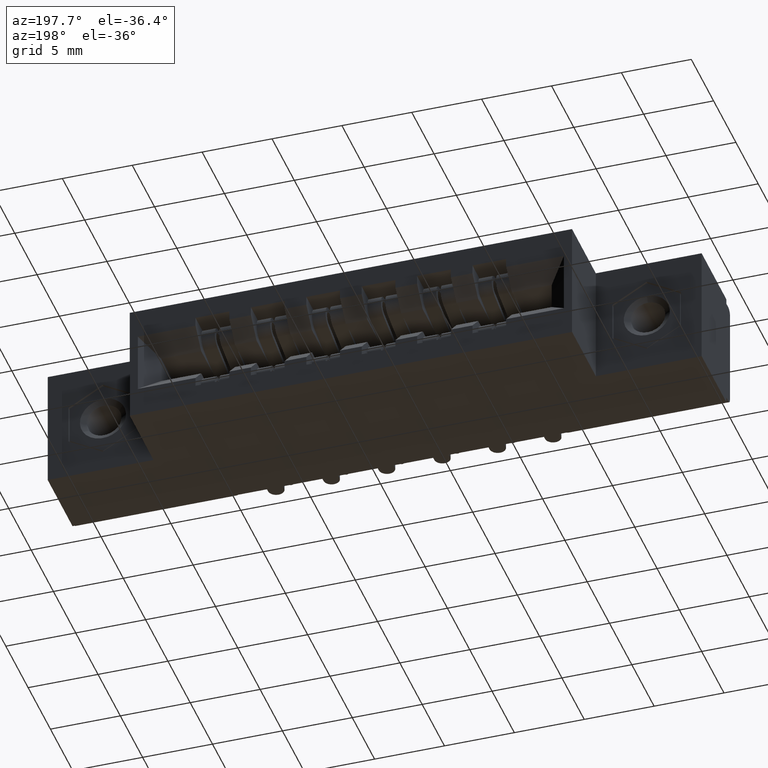
[diagram: clean part render]
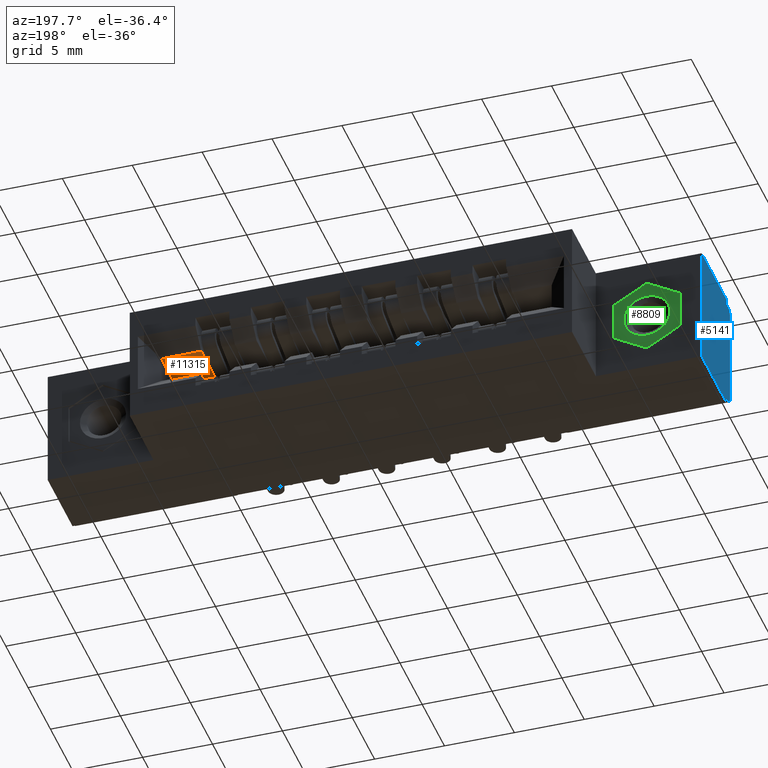
[diagram: same view with three faces highlighted in distinct colors, each labeled with its STEP entity id]
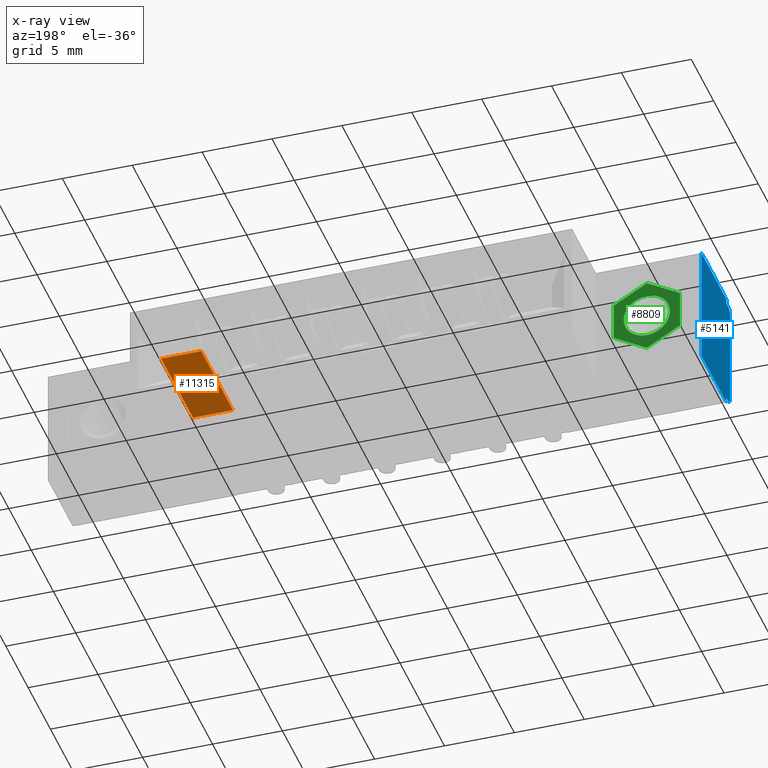
[diagram: x-ray of the same camera — body ghosted, the three highlighted faces saturated]
A machine part, auxiliary view with three faces highlighted in distinct colors.
The next image is the same camera in x-ray (body ghosted, the three faces saturated) — at least one of them is partly hidden behind the body in this view.
Their STEP definitions:

[orange] entity #11315 — the highlighted planar face has unit normal (0, 0, 1).
#245 = ORIENTED_EDGE ( 'NONE', *, *, #2216, .T. ) ;
#351 = CARTESIAN_POINT ( 'NONE',  ( 1.358499999999998700, 0.1299999999999999800, -0.1345000000000006500 ) ) ;
#494 = VERTEX_POINT ( 'NONE', #2546 ) ;
#1155 = DIRECTION ( 'NONE',  ( -0.0000000000000000000, 1.000000000000000000, -0.0000000000000000000 ) ) ;
#2012 = CARTESIAN_POINT ( 'NONE',  ( 0.3709999999999986600, 0.4100000000000002500, -0.1345000000000006500 ) ) ;
#2110 = VERTEX_POINT ( 'NONE', #5764 ) ;
#2216 = EDGE_CURVE ( 'NONE', #4290, #8502, #8655, .T. ) ;
#2251 = DIRECTION ( 'NONE',  ( 1.552186360036513300E-017, 0.0000000000000000000, 1.000000000000000000 ) ) ;
#2502 = VECTOR ( 'NONE', #8718, 39.37007874015748100 ) ;
#2546 = CARTESIAN_POINT ( 'NONE',  ( 1.470999999999999000, 0.1299999999999999800, -0.1345000000000006500 ) ) ;
#2722 = ORIENTED_EDGE ( 'NONE', *, *, #10564, .T. ) ;
#3838 = ORIENTED_EDGE ( 'NONE', *, *, #8781, .F. ) ;
#4001 = ORIENTED_EDGE ( 'NONE', *, *, #7530, .F. ) ;
#4290 = VERTEX_POINT ( 'NONE', #8709 ) ;
#4406 = LINE ( 'NONE', #6262, #6437 ) ;
#4968 = LINE ( 'NONE', #351, #2502 ) ;
#5002 = DIRECTION ( 'NONE',  ( 1.000000000000000000, 0.0000000000000000000, -1.552186360036513300E-017 ) ) ;
#5376 = DIRECTION ( 'NONE',  ( 1.000000000000000000, 0.0000000000000000000, -1.552186360036513000E-017 ) ) ;
#5701 = CARTESIAN_POINT ( 'NONE',  ( 1.470999999999999000, 0.1299999999999999800, -0.1345000000000006500 ) ) ;
#5764 = CARTESIAN_POINT ( 'NONE',  ( 1.358499999999998700, 0.1299999999999999800, -0.1345000000000006500 ) ) ;
#5957 = EDGE_LOOP ( 'NONE', ( #4001, #2722, #245, #3838 ) ) ;
#6262 = CARTESIAN_POINT ( 'NONE',  ( 0.3709999999999986600, 0.1299999999999999800, -0.1345000000000006500 ) ) ;
#6437 = VECTOR ( 'NONE', #5376, 39.37007874015748100 ) ;
#6553 = LINE ( 'NONE', #5701, #7821 ) ;
#6875 = CARTESIAN_POINT ( 'NONE',  ( 1.470999999999999000, 0.4100000000000002500, -0.1345000000000006500 ) ) ;
#7530 = EDGE_CURVE ( 'NONE', #2110, #494, #4406, .T. ) ;
#7821 = VECTOR ( 'NONE', #1155, 39.37007874015748100 ) ;
#8502 = VERTEX_POINT ( 'NONE', #6875 ) ;
#8569 = DIRECTION ( 'NONE',  ( 1.000000000000000000, 0.0000000000000000000, -1.552186360036513300E-017 ) ) ;
#8655 = LINE ( 'NONE', #2012, #9239 ) ;
#8709 = CARTESIAN_POINT ( 'NONE',  ( 1.358499999999998700, 0.4100000000000002500, -0.1345000000000006500 ) ) ;
#8718 = DIRECTION ( 'NONE',  ( -0.0000000000000000000, 1.000000000000000000, 0.0000000000000000000 ) ) ;
#8781 = EDGE_CURVE ( 'NONE', #494, #8502, #6553, .T. ) ;
#9239 = VECTOR ( 'NONE', #8569, 39.37007874015748100 ) ;
#9587 = CARTESIAN_POINT ( 'NONE',  ( 0.3709999999999986600, 0.1299999999999999800, -0.1345000000000006500 ) ) ;
#10564 = EDGE_CURVE ( 'NONE', #2110, #4290, #4968, .T. ) ;
#11156 = AXIS2_PLACEMENT_3D ( 'NONE', #9587, #2251, #5002 ) ;
#11315 = ADVANCED_FACE ( 'NONE', ( #11596 ), #11541, .F. ) ;
#11541 = PLANE ( 'NONE',  #11156 ) ;
#11596 = FACE_OUTER_BOUND ( 'NONE', #5957, .T. ) ;

[blue] entity #5141 — the highlighted planar face has unit normal (1, 0, 0).
#164 = CARTESIAN_POINT ( 'NONE',  ( 0.0000000000000000000, 0.0000000000000000000, -0.02999999999999995400 ) ) ;
#286 = EDGE_CURVE ( 'NONE', #2917, #7035, #8710, .T. ) ;
#323 = VECTOR ( 'NONE', #6793, 39.37007874015748100 ) ;
#348 = DIRECTION ( 'NONE',  ( -0.0000000000000000000, -0.0000000000000000000, 1.000000000000000000 ) ) ;
#508 = CARTESIAN_POINT ( 'NONE',  ( 0.0000000000000000000, 0.03100000000000000000, 0.0000000000000000000 ) ) ;
#575 = ORIENTED_EDGE ( 'NONE', *, *, #11843, .F. ) ;
#628 = CARTESIAN_POINT ( 'NONE',  ( 0.0000000000000000000, 0.01499999999999999900, -0.3280000000000000100 ) ) ;
#1298 = CARTESIAN_POINT ( 'NONE',  ( 0.0000000000000000000, 0.0000000000000000000, 0.0000000000000000000 ) ) ;
#1333 = PLANE ( 'NONE',  #3603 ) ;
#1447 = ORIENTED_EDGE ( 'NONE', *, *, #7355, .T. ) ;
#1562 = CARTESIAN_POINT ( 'NONE',  ( 0.0000000000000000000, 0.01499999999999999900, -0.02999999999999995400 ) ) ;
#1610 = LINE ( 'NONE', #11660, #11143 ) ;
#1811 = CARTESIAN_POINT ( 'NONE',  ( 0.0000000000000000000, 0.03100000000000000000, -0.3430000000000000300 ) ) ;
#2059 = EDGE_CURVE ( 'NONE', #9774, #7039, #3763, .T. ) ;
#2115 = CARTESIAN_POINT ( 'NONE',  ( 0.0000000000000000000, 0.03100000000000000000, 0.0000000000000000000 ) ) ;
#2211 = VECTOR ( 'NONE', #3995, 39.37007874015748100 ) ;
#2231 = LINE ( 'NONE', #5839, #9585 ) ;
#2387 = VECTOR ( 'NONE', #348, 39.37007874015748100 ) ;
#2437 = ORIENTED_EDGE ( 'NONE', *, *, #11403, .T. ) ;
#2637 = CARTESIAN_POINT ( 'NONE',  ( 0.0000000000000000000, 0.2500000000000000600, -0.3430000000000000300 ) ) ;
#2664 = EDGE_CURVE ( 'NONE', #8603, #4849, #9278, .T. ) ;
#2917 = VERTEX_POINT ( 'NONE', #8668 ) ;
#2920 = CIRCLE ( 'NONE', #11865, 0.01500000000000000300 ) ;
#2966 = EDGE_CURVE ( 'NONE', #8305, #11521, #2920, .T. ) ;
#3420 = DIRECTION ( 'NONE',  ( -0.0000000000000000000, -0.0000000000000000000, 1.000000000000000000 ) ) ;
#3603 = AXIS2_PLACEMENT_3D ( 'NONE', #4235, #10566, #8714 ) ;
#3763 = LINE ( 'NONE', #1811, #8663 ) ;
#3995 = DIRECTION ( 'NONE',  ( -0.0000000000000000000, -1.000000000000000000, -0.0000000000000000000 ) ) ;
#4070 = DIRECTION ( 'NONE',  ( 0.0000000000000000000, 1.000000000000000000, 0.0000000000000000000 ) ) ;
#4235 = CARTESIAN_POINT ( 'NONE',  ( 0.0000000000000000000, 0.4600000000000000200, 0.0000000000000000000 ) ) ;
#4272 = DIRECTION ( 'NONE',  ( -1.000000000000000000, 0.0000000000000000000, -0.0000000000000000000 ) ) ;
#4301 = CARTESIAN_POINT ( 'NONE',  ( 0.0000000000000000000, 0.01499999999999999900, -0.01499999999999997700 ) ) ;
#4647 = DIRECTION ( 'NONE',  ( -0.0000000000000000000, -0.0000000000000000000, -1.000000000000000000 ) ) ;
#4849 = VERTEX_POINT ( 'NONE', #7370 ) ;
#5044 = VERTEX_POINT ( 'NONE', #11350 ) ;
#5141 = ADVANCED_FACE ( 'NONE', ( #6765 ), #1333, .F. ) ;
#5597 = DIRECTION ( 'NONE',  ( -0.0000000000000000000, -1.000000000000000000, -0.0000000000000000000 ) ) ;
#5686 = VECTOR ( 'NONE', #5597, 39.37007874015748100 ) ;
#5736 = DIRECTION ( 'NONE',  ( -1.000000000000000000, 0.0000000000000000000, -0.0000000000000000000 ) ) ;
#5839 = CARTESIAN_POINT ( 'NONE',  ( 0.0000000000000000000, 0.0000000000000000000, -0.3280000000000000100 ) ) ;
#5921 = ORIENTED_EDGE ( 'NONE', *, *, #2664, .T. ) ;
#5946 = ORIENTED_EDGE ( 'NONE', *, *, #2966, .T. ) ;
#6173 = ORIENTED_EDGE ( 'NONE', *, *, #9815, .F. ) ;
#6765 = FACE_OUTER_BOUND ( 'NONE', #7159, .T. ) ;
#6793 = DIRECTION ( 'NONE',  ( 0.0000000000000000000, 0.0000000000000000000, -1.000000000000000000 ) ) ;
#7035 = VERTEX_POINT ( 'NONE', #508 ) ;
#7039 = VERTEX_POINT ( 'NONE', #10423 ) ;
#7143 = CARTESIAN_POINT ( 'NONE',  ( 0.0000000000000000000, 0.2500000000000000600, 0.0000000000000000000 ) ) ;
#7159 = EDGE_LOOP ( 'NONE', ( #10808, #6173, #2437, #8590, #9526, #5921, #1447, #5946, #11519, #575 ) ) ;
#7240 = LINE ( 'NONE', #2115, #323 ) ;
#7255 = LINE ( 'NONE', #9404, #2211 ) ;
#7355 = EDGE_CURVE ( 'NONE', #4849, #8305, #8299, .T. ) ;
#7370 = CARTESIAN_POINT ( 'NONE',  ( 0.0000000000000000000, 0.0000000000000000000, -0.3130000000000000600 ) ) ;
#7716 = VECTOR ( 'NONE', #3420, 39.37007874015748100 ) ;
#8299 = LINE ( 'NONE', #1298, #2387 ) ;
#8305 = VERTEX_POINT ( 'NONE', #164 ) ;
#8590 = ORIENTED_EDGE ( 'NONE', *, *, #2059, .F. ) ;
#8603 = VERTEX_POINT ( 'NONE', #628 ) ;
#8625 = DIRECTION ( 'NONE',  ( 0.0000000000000000000, 0.0000000000000000000, -1.000000000000000000 ) ) ;
#8663 = VECTOR ( 'NONE', #4647, 39.37007874015748100 ) ;
#8668 = CARTESIAN_POINT ( 'NONE',  ( 0.0000000000000000000, 0.2500000000000000600, 0.0000000000000000000 ) ) ;
#8710 = LINE ( 'NONE', #9144, #5686 ) ;
#8714 = DIRECTION ( 'NONE',  ( 0.0000000000000000000, 0.0000000000000000000, -1.000000000000000000 ) ) ;
#8861 = CARTESIAN_POINT ( 'NONE',  ( 0.0000000000000000000, 0.03100000000000000000, -0.3280000000000000100 ) ) ;
#9144 = CARTESIAN_POINT ( 'NONE',  ( 0.0000000000000000000, 0.4600000000000000200, 0.0000000000000000000 ) ) ;
#9278 = CIRCLE ( 'NONE', #9621, 0.01499999999999997700 ) ;
#9370 = VERTEX_POINT ( 'NONE', #2637 ) ;
#9404 = CARTESIAN_POINT ( 'NONE',  ( 0.0000000000000000000, 0.0000000000000000000, -0.01499999999999997700 ) ) ;
#9526 = ORIENTED_EDGE ( 'NONE', *, *, #10172, .F. ) ;
#9585 = VECTOR ( 'NONE', #4070, 39.37007874015748100 ) ;
#9621 = AXIS2_PLACEMENT_3D ( 'NONE', #10368, #5736, #8625 ) ;
#9774 = VERTEX_POINT ( 'NONE', #8861 ) ;
#9815 = EDGE_CURVE ( 'NONE', #9370, #2917, #10020, .T. ) ;
#9860 = DIRECTION ( 'NONE',  ( -0.0000000000000000000, -1.000000000000000000, -0.0000000000000000000 ) ) ;
#10020 = LINE ( 'NONE', #7143, #7716 ) ;
#10172 = EDGE_CURVE ( 'NONE', #8603, #9774, #2231, .T. ) ;
#10368 = CARTESIAN_POINT ( 'NONE',  ( 0.0000000000000000000, 0.01499999999999999900, -0.3130000000000000600 ) ) ;
#10423 = CARTESIAN_POINT ( 'NONE',  ( 0.0000000000000000000, 0.03100000000000000000, -0.3430000000000000300 ) ) ;
#10566 = DIRECTION ( 'NONE',  ( 1.000000000000000000, -0.0000000000000000000, 0.0000000000000000000 ) ) ;
#10799 = DIRECTION ( 'NONE',  ( 0.0000000000000000000, 8.537024980200820800E-016, -1.000000000000000000 ) ) ;
#10808 = ORIENTED_EDGE ( 'NONE', *, *, #286, .F. ) ;
#11143 = VECTOR ( 'NONE', #9860, 39.37007874015748100 ) ;
#11150 = EDGE_CURVE ( 'NONE', #5044, #11521, #7255, .T. ) ;
#11350 = CARTESIAN_POINT ( 'NONE',  ( 0.0000000000000000000, 0.03100000000000000000, -0.01499999999999997700 ) ) ;
#11403 = EDGE_CURVE ( 'NONE', #9370, #7039, #1610, .T. ) ;
#11519 = ORIENTED_EDGE ( 'NONE', *, *, #11150, .F. ) ;
#11521 = VERTEX_POINT ( 'NONE', #4301 ) ;
#11660 = CARTESIAN_POINT ( 'NONE',  ( 0.0000000000000000000, 0.4600000000000000200, -0.3430000000000000300 ) ) ;
#11843 = EDGE_CURVE ( 'NONE', #7035, #5044, #7240, .T. ) ;
#11865 = AXIS2_PLACEMENT_3D ( 'NONE', #1562, #4272, #10799 ) ;

[green] entity #8809 — the highlighted planar face has unit normal (-0, -1, 0).
#23 = VECTOR ( 'NONE', #6396, 39.37007874015748100 ) ;
#191 = CARTESIAN_POINT ( 'NONE',  ( 1.659291999935455800E-017, 0.0000000000000000000, -0.1079645003384597700 ) ) ;
#297 = VERTEX_POINT ( 'NONE', #6533 ) ;
#499 = EDGE_CURVE ( 'NONE', #4244, #10899, #4234, .T. ) ;
#796 = LINE ( 'NONE', #4850, #1370 ) ;
#1073 = DIRECTION ( 'NONE',  ( 0.8660254037844389300, 0.0000000000000000000, -0.4999999999999994400 ) ) ;
#1169 = ORIENTED_EDGE ( 'NONE', *, *, #1190, .F. ) ;
#1190 = EDGE_CURVE ( 'NONE', #11533, #4013, #2053, .T. ) ;
#1341 = ORIENTED_EDGE ( 'NONE', *, *, #3331, .F. ) ;
#1370 = VECTOR ( 'NONE', #8541, 39.37007874015748900 ) ;
#1479 = DIRECTION ( 'NONE',  ( 0.8660254037844389300, 0.0000000000000000000, 0.4999999999999995600 ) ) ;
#1491 = CARTESIAN_POINT ( 'NONE',  ( -1.536664496436148200E-016, -6.829619984160658000E-017, -0.06499999999999993300 ) ) ;
#1769 = EDGE_LOOP ( 'NONE', ( #4990, #1341, #1169, #9810, #3409, #11727 ) ) ;
#1791 = VECTOR ( 'NONE', #2590, 39.37007874015748100 ) ;
#2003 = DIRECTION ( 'NONE',  ( -0.0000000000000000000, -1.000000000000000000, -0.0000000000000000000 ) ) ;
#2053 = LINE ( 'NONE', #10692, #9120 ) ;
#2590 = DIRECTION ( 'NONE',  ( 0.0000000000000000000, 0.0000000000000000000, 1.000000000000000000 ) ) ;
#2990 = EDGE_CURVE ( 'NONE', #10899, #11533, #11870, .T. ) ;
#3196 = EDGE_LOOP ( 'NONE', ( #7348, #4137 ) ) ;
#3331 = EDGE_CURVE ( 'NONE', #4013, #7329, #8971, .T. ) ;
#3409 = ORIENTED_EDGE ( 'NONE', *, *, #499, .F. ) ;
#3582 = CARTESIAN_POINT ( 'NONE',  ( 0.09349999999999969400, 0.0000000000000000000, 0.05398225016923022300 ) ) ;
#3645 = CARTESIAN_POINT ( 'NONE',  ( -3.158918927254356400E-016, 0.0000000000000000000, 0.1079645003384601700 ) ) ;
#3827 = EDGE_CURVE ( 'NONE', #7329, #7797, #8081, .T. ) ;
#3890 = PLANE ( 'NONE',  #6426 ) ;
#4013 = VERTEX_POINT ( 'NONE', #11267 ) ;
#4137 = ORIENTED_EDGE ( 'NONE', *, *, #9726, .F. ) ;
#4234 = LINE ( 'NONE', #4491, #1791 ) ;
#4244 = VERTEX_POINT ( 'NONE', #7741 ) ;
#4491 = CARTESIAN_POINT ( 'NONE',  ( -0.09350000000000011100, 0.0000000000000000000, -0.05398225016922967400 ) ) ;
#4499 = CARTESIAN_POINT ( 'NONE',  ( 0.09349999999999957000, 0.0000000000000000000, -0.05398225016922995200 ) ) ;
#4503 = VECTOR ( 'NONE', #6341, 39.37007874015748100 ) ;
#4850 = CARTESIAN_POINT ( 'NONE',  ( 1.514953011621329900E-017, 0.0000000000000000000, -0.1079645003384597700 ) ) ;
#4988 = CIRCLE ( 'NONE', #11922, 0.06500000000000014100 ) ;
#4990 = ORIENTED_EDGE ( 'NONE', *, *, #3827, .F. ) ;
#5054 = DIRECTION ( 'NONE',  ( -0.0000000000000000000, -1.000000000000000000, -0.0000000000000000000 ) ) ;
#5710 = DIRECTION ( 'NONE',  ( 0.0000000000000000000, 0.0000000000000000000, -1.000000000000000000 ) ) ;
#5866 = CARTESIAN_POINT ( 'NONE',  ( 0.09349999999999957000, 0.0000000000000000000, -0.05398225016922995200 ) ) ;
#5980 = DIRECTION ( 'NONE',  ( 0.0000000000000000000, 0.0000000000000000000, -1.000000000000000000 ) ) ;
#6257 = CARTESIAN_POINT ( 'NONE',  ( -0.09350000000000011100, 0.0000000000000000000, 0.05398225016923036100 ) ) ;
#6341 = DIRECTION ( 'NONE',  ( -1.265160300422887000E-015, 0.0000000000000000000, -1.000000000000000000 ) ) ;
#6396 = DIRECTION ( 'NONE',  ( -0.8660254037844383700, 0.0000000000000000000, -0.5000000000000004400 ) ) ;
#6426 = AXIS2_PLACEMENT_3D ( 'NONE', #191, #9339, #10206 ) ;
#6533 = CARTESIAN_POINT ( 'NONE',  ( -1.457062454491570000E-016, -6.829619984160658000E-017, 0.06500000000000034900 ) ) ;
#6902 = EDGE_CURVE ( 'NONE', #9153, #297, #11211, .T. ) ;
#7144 = CARTESIAN_POINT ( 'NONE',  ( -0.09350000000000011100, 0.0000000000000000000, 0.05398225016923036100 ) ) ;
#7329 = VERTEX_POINT ( 'NONE', #5866 ) ;
#7348 = ORIENTED_EDGE ( 'NONE', *, *, #6902, .F. ) ;
#7518 = CARTESIAN_POINT ( 'NONE',  ( -1.536664496436148200E-016, -6.829619984160658000E-017, 2.048885995248197400E-016 ) ) ;
#7690 = EDGE_CURVE ( 'NONE', #7797, #4244, #796, .T. ) ;
#7741 = CARTESIAN_POINT ( 'NONE',  ( -0.09350000000000011100, 0.0000000000000000000, -0.05398225016922967400 ) ) ;
#7797 = VERTEX_POINT ( 'NONE', #11260 ) ;
#8081 = LINE ( 'NONE', #4499, #23 ) ;
#8397 = FACE_OUTER_BOUND ( 'NONE', #1769, .T. ) ;
#8541 = DIRECTION ( 'NONE',  ( -0.8660254037844386000, 0.0000000000000000000, 0.5000000000000000000 ) ) ;
#8809 = ADVANCED_FACE ( 'NONE', ( #10574, #8397 ), #3890, .F. ) ;
#8971 = LINE ( 'NONE', #3582, #4503 ) ;
#9120 = VECTOR ( 'NONE', #1073, 39.37007874015748100 ) ;
#9153 = VERTEX_POINT ( 'NONE', #1491 ) ;
#9339 = DIRECTION ( 'NONE',  ( 0.0000000000000000000, 1.000000000000000000, 0.0000000000000000000 ) ) ;
#9726 = EDGE_CURVE ( 'NONE', #297, #9153, #4988, .T. ) ;
#9810 = ORIENTED_EDGE ( 'NONE', *, *, #2990, .F. ) ;
#10206 = DIRECTION ( 'NONE',  ( 0.0000000000000000000, -0.0000000000000000000, 1.000000000000000000 ) ) ;
#10558 = CARTESIAN_POINT ( 'NONE',  ( -1.536664496436148200E-016, -6.829619984160658000E-017, 2.048885995248197400E-016 ) ) ;
#10574 = FACE_BOUND ( 'NONE', #3196, .T. ) ;
#10649 = AXIS2_PLACEMENT_3D ( 'NONE', #7518, #2003, #5710 ) ;
#10692 = CARTESIAN_POINT ( 'NONE',  ( -3.158918927254356400E-016, 0.0000000000000000000, 0.1079645003384601700 ) ) ;
#10899 = VERTEX_POINT ( 'NONE', #6257 ) ;
#11211 = CIRCLE ( 'NONE', #10649, 0.06500000000000014100 ) ;
#11260 = CARTESIAN_POINT ( 'NONE',  ( 1.514953011621329900E-017, 0.0000000000000000000, -0.1079645003384597700 ) ) ;
#11267 = CARTESIAN_POINT ( 'NONE',  ( 0.09349999999999969400, 0.0000000000000000000, 0.05398225016923022300 ) ) ;
#11437 = VECTOR ( 'NONE', #1479, 39.37007874015748100 ) ;
#11533 = VERTEX_POINT ( 'NONE', #3645 ) ;
#11727 = ORIENTED_EDGE ( 'NONE', *, *, #7690, .F. ) ;
#11870 = LINE ( 'NONE', #7144, #11437 ) ;
#11922 = AXIS2_PLACEMENT_3D ( 'NONE', #10558, #5054, #5980 ) ;